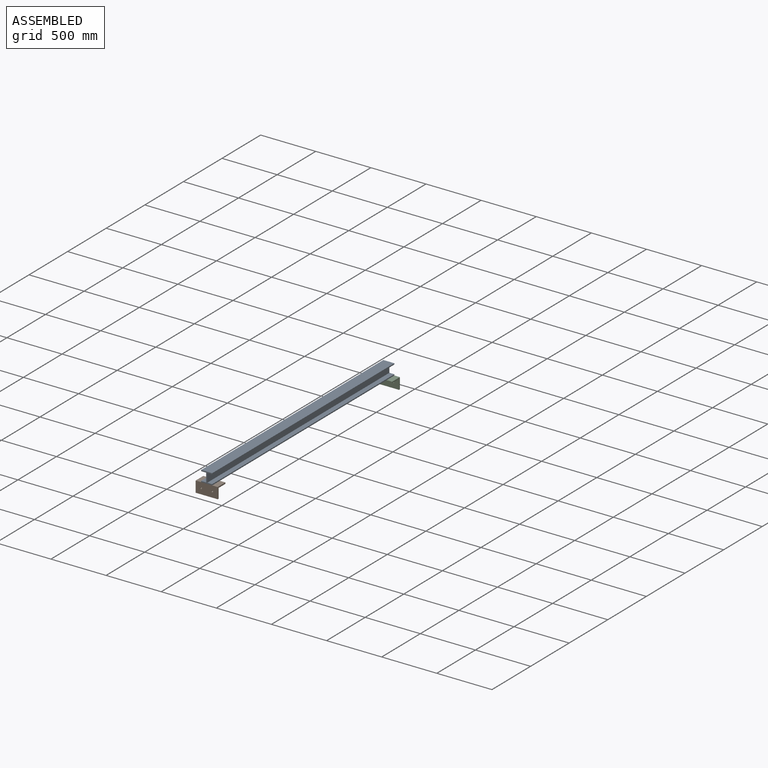
[diagram: assembled view]
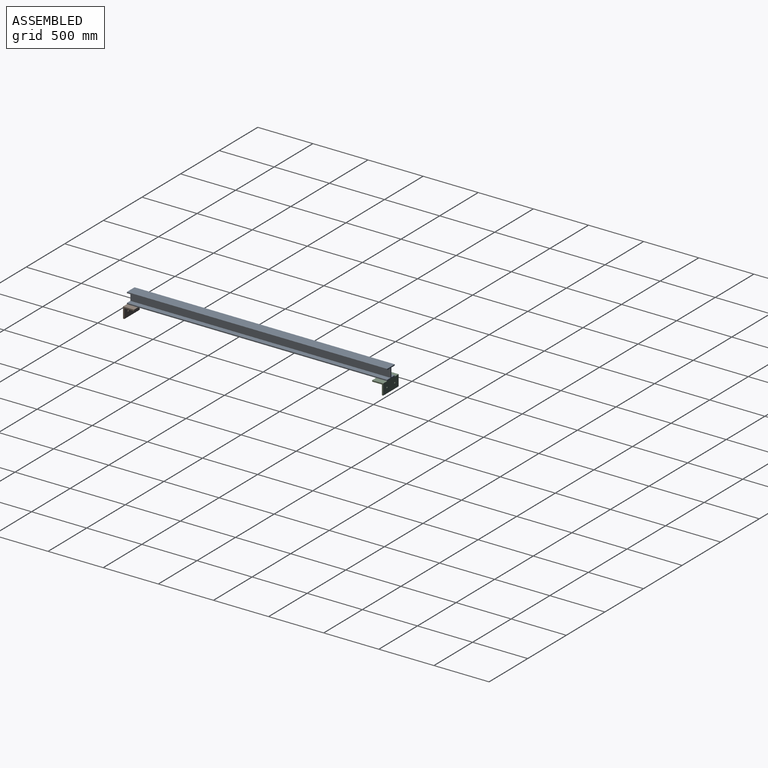
[diagram: assembled view, second angle]
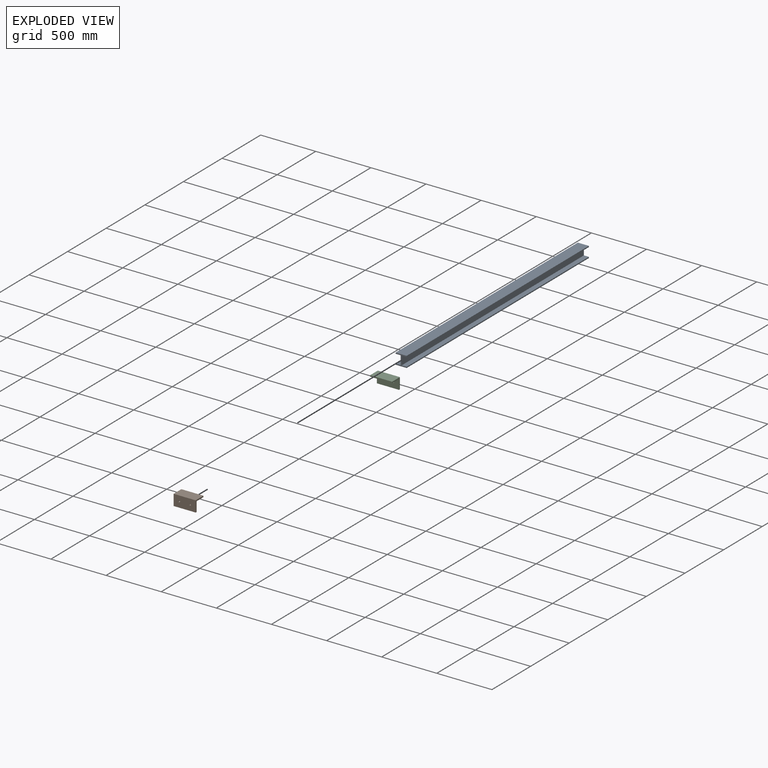
[diagram: exploded view]
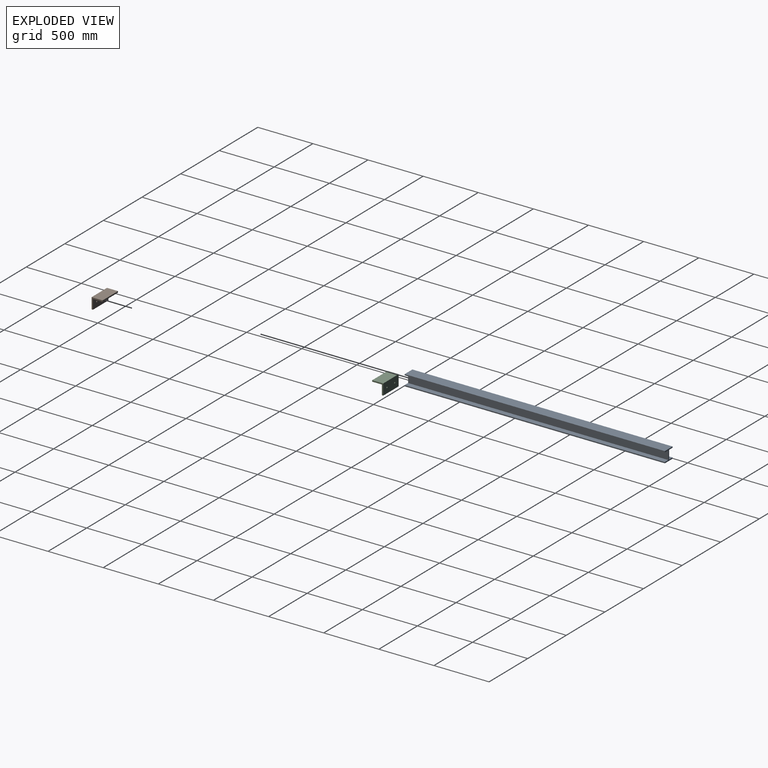
[diagram: exploded view, second angle]
ASSEMBLY  parts=3 mates=4
PART A: 14 faces, bbox 100x2360x100 mm
  f0: plane 2360x10mm, normal (1,0,0), area 23600mm2, adj f1,f11,f12,f13
  f1: plane 2360x100mm, normal (0,0,1), area 236000mm2, adj f0,f2,f12,f13
  f2: plane 2360x10mm, normal (-1,0,0), area 23600mm2, adj f1,f3,f12,f13
  f3: plane 2360x45mm, normal (0,0,-1), area 106200mm2, adj f2,f4,f12,f13
  f4: plane 2360x80mm, normal (-1,0,0), area 188800mm2, adj f3,f5,f12,f13
  f5: plane 2360x45mm, normal (0,0,1), area 106200mm2, adj f4,f6,f12,f13
  f6: plane 2360x10mm, normal (-1,0,0), area 23600mm2, adj f5,f7,f12,f13
  f7: plane 2360x100mm, normal (0,0,-1), area 236000mm2, adj f6,f8,f12,f13
  f8: plane 2360x10mm, normal (1,0,0), area 23600mm2, adj f7,f9,f12,f13
  f9: plane 2360x45mm, normal (0,0,1), area 106200mm2, adj f8,f10,f12,f13
  f10: plane 2360x80mm, normal (1,0,0), area 188800mm2, adj f9,f11,f12,f13
  f11: plane 2360x45mm, normal (0,0,-1), area 106200mm2, adj f0,f10,f12,f13
  f12: plane 100x100mm, normal (0,-1,0), area 2800mm2, adj f0,f1,f2,f3,f4,f5,f6,f7
  f13: plane 100x100mm, normal (0,1,0), area 2800mm2, adj f0,f1,f2,f3,f4,f5,f6,f7
PART B: 10 faces, bbox 100x200x100 mm
  f0: plane 200x100mm, normal (-1,0,0), area 19734.5mm2, adj f1,f5,f6,f7,f8,f9
  f1: plane 200x12mm, normal (0,0,-1), area 2400mm2, adj f0,f2,f6,f7
  f2: plane 200x88mm, normal (1,0,0), area 17334.5mm2, adj f1,f3,f6,f7,f8,f9
  f3: plane 200x88mm, normal (0,0,-1), area 17600mm2, adj f2,f4,f6,f7
  f4: plane 200x12mm, normal (1,0,0), area 2400mm2, adj f3,f5,f6,f7
  f5: plane 200x100mm, normal (0,0,1), area 20000mm2, adj f0,f4,f6,f7
  f6: plane 100x100mm, normal (0,-1,0), area 2256mm2, adj f0,f1,f2,f3,f4,f5
  f7: plane 100x100mm, normal (0,1,0), area 2256mm2, adj f0,f1,f2,f3,f4,f5
  f8: cylinder r=6.5mm len=13mm, axis (1,0,0), area 490.1mm2, adj f0,f2
  f9: cylinder r=6.5mm len=13mm, axis (1,0,0), area 490.1mm2, adj f0,f2
PART C: same geometry as B
PLACE A t=(1.85,-19.51,-0.74)mm fixed
PLACE B rot(axis=(0,0,1),90deg) t=(1.85,-1199.51,-100.74)mm
PLACE C rot(axis=(0,0,-1),90deg) t=(1.85,1160.49,-100.74)mm
MATE planar C.f5 <-> A.f7  axis (0,0,1) through (1.85,1110.49,-50.74)mm
MATE planar B.f0 <-> A.f12  axis (0,-1,0) through (1.85,-1199.51,-100.74)mm
MATE planar B.f5 <-> A.f7  axis (0,0,1) through (1.85,-1149.51,-50.74)mm
MATE planar C.f0 <-> A.f13  axis (0,1,0) through (1.85,1160.49,-100.74)mm
